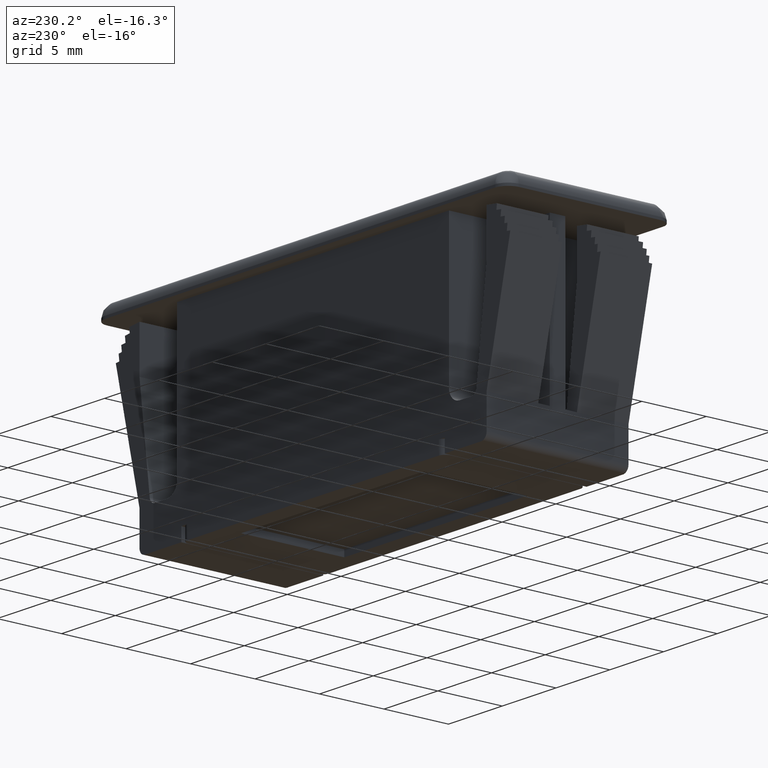
[diagram: clean part render]
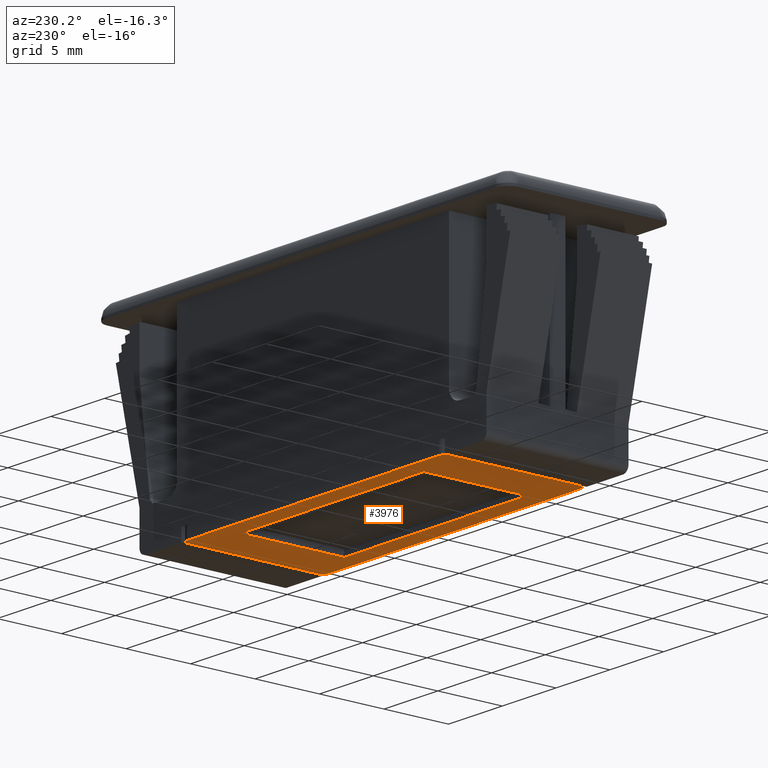
[diagram: same view with one face highlighted and labeled with its STEP entity id]
A machine part, auxiliary view. The second image highlights one B-rep face of the part: STEP entity #3976.
In plain terms, the highlighted face is a freeform B-spline surface patch.
Its self-contained STEP definition (entity closure, byte-faithful):
#3532=CARTESIAN_POINT('',(8.500000000000000,4.000018065663509,-16.199999999999999));
#3533=VERTEX_POINT('',#3532);
#3534=CARTESIAN_POINT('',(-8.500000000000000,4.000018065663509,-16.199999999999999));
#3535=VERTEX_POINT('',#3534);
#3536=CARTESIAN_POINT('',(8.500000000000000,4.000018065663509,-16.199999999999999));
#3537=CARTESIAN_POINT('',(-8.500000000000000,4.000018065663509,-16.199999999999999));
#3538=QUASI_UNIFORM_CURVE('',1,(#3536,#3537),.UNSPECIFIED.,.F.,.U.);
#3539=EDGE_CURVE('',#3533,#3535,#3538,.T.);
#3560=CARTESIAN_POINT('',(8.500000000000000,-3.999981934336506,-16.199999999999999));
#3561=VERTEX_POINT('',#3560);
#3562=CARTESIAN_POINT('',(8.500000000000000,-3.999981934336506,-16.199999999999999));
#3563=CARTESIAN_POINT('',(8.500000000000000,4.000018065663509,-16.199999999999999));
#3564=QUASI_UNIFORM_CURVE('',1,(#3562,#3563),.UNSPECIFIED.,.F.,.U.);
#3565=EDGE_CURVE('',#3561,#3533,#3564,.T.);
#3582=CARTESIAN_POINT('',(-8.500000000000000,-3.999981934336506,-16.199999999999999));
#3583=VERTEX_POINT('',#3582);
#3584=CARTESIAN_POINT('',(-8.500000000000000,-3.999981934336506,-16.199999999999999));
#3585=CARTESIAN_POINT('',(8.500000000000000,-3.999981934336506,-16.199999999999999));
#3586=QUASI_UNIFORM_CURVE('',1,(#3584,#3585),.UNSPECIFIED.,.F.,.U.);
#3587=EDGE_CURVE('',#3583,#3561,#3586,.T.);
#3604=CARTESIAN_POINT('',(-8.500000000000000,4.000018065663509,-16.199999999999999));
#3605=CARTESIAN_POINT('',(-8.500000000000000,-3.999981934336506,-16.199999999999999));
#3606=QUASI_UNIFORM_CURVE('',1,(#3604,#3605),.UNSPECIFIED.,.F.,.U.);
#3607=EDGE_CURVE('',#3535,#3583,#3606,.T.);
#3646=CARTESIAN_POINT('',(-12.199999999999999,-4.999999999961320,-16.199999999999999));
#3647=VERTEX_POINT('',#3646);
#3653=CARTESIAN_POINT('',(-11.699999999999999,-5.499999999961320,-16.199999999999999));
#3654=VERTEX_POINT('',#3653);
#3655=CARTESIAN_POINT('',(-11.699999999999999,-5.499999999961321,-16.199999999999999));
#3656=CARTESIAN_POINT('',(-12.200000000000001,-5.499999999961321,-16.199999999999999));
#3657=CARTESIAN_POINT('',(-12.199999999999999,-4.999999999961320,-16.199999999999999));
#3665=(BOUNDED_CURVE()B_SPLINE_CURVE(2,(#3655,#3656,#3657),.UNSPECIFIED.,.F.,.U.)CURVE()GEOMETRIC_REPRESENTATION_ITEM()QUASI_UNIFORM_CURVE()RATIONAL_B_SPLINE_CURVE((1.0,0.707106781186548,1.0))REPRESENTATION_ITEM(''));
#3666=EDGE_CURVE('',#3654,#3647,#3665,.T.);
#3707=CARTESIAN_POINT('',(11.699999999999759,-5.499999999961320,-16.199999999999999));
#3708=VERTEX_POINT('',#3707);
#3714=CARTESIAN_POINT('',(12.199999999999759,-4.999999999961340,-16.199999999999999));
#3715=VERTEX_POINT('',#3714);
#3716=CARTESIAN_POINT('',(12.199999999999759,-4.999999999961320,-16.199999999999999));
#3717=CARTESIAN_POINT('',(12.199999999999761,-5.499999999961321,-16.199999999999999));
#3718=CARTESIAN_POINT('',(11.699999999999759,-5.499999999961321,-16.199999999999999));
#3726=(BOUNDED_CURVE()B_SPLINE_CURVE(2,(#3716,#3717,#3718),.UNSPECIFIED.,.F.,.U.)CURVE()GEOMETRIC_REPRESENTATION_ITEM()QUASI_UNIFORM_CURVE()RATIONAL_B_SPLINE_CURVE((1.0,0.707106781186548,1.0))REPRESENTATION_ITEM(''));
#3727=EDGE_CURVE('',#3715,#3708,#3726,.T.);
#3768=CARTESIAN_POINT('',(12.200000000000260,5.000000000038610,-16.199999999999999));
#3769=VERTEX_POINT('',#3768);
#3775=CARTESIAN_POINT('',(11.700000000000260,5.500000000038640,-16.199999999999999));
#3776=VERTEX_POINT('',#3775);
#3777=CARTESIAN_POINT('',(11.700000000000260,5.500000000038641,-16.199999999999999));
#3778=CARTESIAN_POINT('',(12.200000000000262,5.500000000038641,-16.199999999999999));
#3779=CARTESIAN_POINT('',(12.200000000000260,5.000000000038640,-16.199999999999999));
#3787=(BOUNDED_CURVE()B_SPLINE_CURVE(2,(#3777,#3778,#3779),.UNSPECIFIED.,.F.,.U.)CURVE()GEOMETRIC_REPRESENTATION_ITEM()QUASI_UNIFORM_CURVE()RATIONAL_B_SPLINE_CURVE((1.0,0.707106781186548,1.0))REPRESENTATION_ITEM(''));
#3788=EDGE_CURVE('',#3776,#3769,#3787,.T.);
#3829=CARTESIAN_POINT('',(-11.699999999999999,5.500000000038640,-16.199999999999999));
#3830=VERTEX_POINT('',#3829);
#3836=CARTESIAN_POINT('',(-12.199999999999999,5.000000000038640,-16.199999999999999));
#3837=VERTEX_POINT('',#3836);
#3838=CARTESIAN_POINT('',(-12.199999999999999,5.000000000038640,-16.199999999999999));
#3839=CARTESIAN_POINT('',(-12.200000000000001,5.500000000038641,-16.199999999999999));
#3840=CARTESIAN_POINT('',(-11.699999999999999,5.500000000038641,-16.199999999999999));
#3848=(BOUNDED_CURVE()B_SPLINE_CURVE(2,(#3838,#3839,#3840),.UNSPECIFIED.,.F.,.U.)CURVE()GEOMETRIC_REPRESENTATION_ITEM()QUASI_UNIFORM_CURVE()RATIONAL_B_SPLINE_CURVE((1.0,0.707106781186548,1.0))REPRESENTATION_ITEM(''));
#3849=EDGE_CURVE('',#3837,#3830,#3848,.T.);
#3896=CARTESIAN_POINT('',(11.700000000000260,5.500000000038640,-16.199999999999999));
#3897=CARTESIAN_POINT('',(-11.699999999999999,5.500000000038640,-16.199999999999999));
#3898=QUASI_UNIFORM_CURVE('',1,(#3896,#3897),.UNSPECIFIED.,.F.,.U.);
#3899=EDGE_CURVE('',#3776,#3830,#3898,.T.);
#3912=CARTESIAN_POINT('',(12.199999999999759,-4.999999999961340,-16.199999999999999));
#3913=CARTESIAN_POINT('',(12.200000000000260,5.000000000038610,-16.199999999999999));
#3914=QUASI_UNIFORM_CURVE('',1,(#3912,#3913),.UNSPECIFIED.,.F.,.U.);
#3915=EDGE_CURVE('',#3715,#3769,#3914,.T.);
#3928=CARTESIAN_POINT('',(-11.699999999999999,-5.499999999961320,-16.199999999999999));
#3929=CARTESIAN_POINT('',(11.699999999999759,-5.499999999961320,-16.199999999999999));
#3930=QUASI_UNIFORM_CURVE('',1,(#3928,#3929),.UNSPECIFIED.,.F.,.U.);
#3931=EDGE_CURVE('',#3654,#3708,#3930,.T.);
#3946=CARTESIAN_POINT('',(-12.199999999999999,5.000000000038640,-16.199999999999999));
#3947=CARTESIAN_POINT('',(-12.199999999999999,-4.999999999961320,-16.199999999999999));
#3948=QUASI_UNIFORM_CURVE('',1,(#3946,#3947),.UNSPECIFIED.,.F.,.U.);
#3949=EDGE_CURVE('',#3837,#3647,#3948,.T.);
#3955=CARTESIAN_POINT('',(-13.418779952708080,-6.049449978641184,-16.199999999999999));
#3956=CARTESIAN_POINT('',(13.418780607167340,-6.049449978641184,-16.199999999999999));
#3957=CARTESIAN_POINT('',(-13.418779952708080,6.049450273761496,-16.199999999999999));
#3958=CARTESIAN_POINT('',(13.418780607167340,6.049450273761496,-16.199999999999999));
#3959=B_SPLINE_SURFACE_WITH_KNOTS('',1,1,((#3955,#3957),(#3956,#3958)),.UNSPECIFIED.,.F.,.F.,.U.,(2,2),(2,2),(0.0,26.837560559875421),(0.0,12.098900252402681),.UNSPECIFIED.);
#3960=ORIENTED_EDGE('',*,*,#3949,.F.);
#3961=ORIENTED_EDGE('',*,*,#3849,.T.);
#3962=ORIENTED_EDGE('',*,*,#3899,.F.);
#3963=ORIENTED_EDGE('',*,*,#3788,.T.);
#3964=ORIENTED_EDGE('',*,*,#3915,.F.);
#3965=ORIENTED_EDGE('',*,*,#3727,.T.);
#3966=ORIENTED_EDGE('',*,*,#3931,.F.);
#3967=ORIENTED_EDGE('',*,*,#3666,.T.);
#3968=EDGE_LOOP('',(#3960,#3961,#3962,#3963,#3964,#3965,#3966,#3967));
#3969=FACE_OUTER_BOUND('',#3968,.T.);
#3970=ORIENTED_EDGE('',*,*,#3607,.T.);
#3971=ORIENTED_EDGE('',*,*,#3587,.T.);
#3972=ORIENTED_EDGE('',*,*,#3565,.T.);
#3973=ORIENTED_EDGE('',*,*,#3539,.T.);
#3974=EDGE_LOOP('',(#3970,#3971,#3972,#3973));
#3975=FACE_BOUND('',#3974,.T.);
#3976=ADVANCED_FACE('',(#3969,#3975),#3959,.F.);